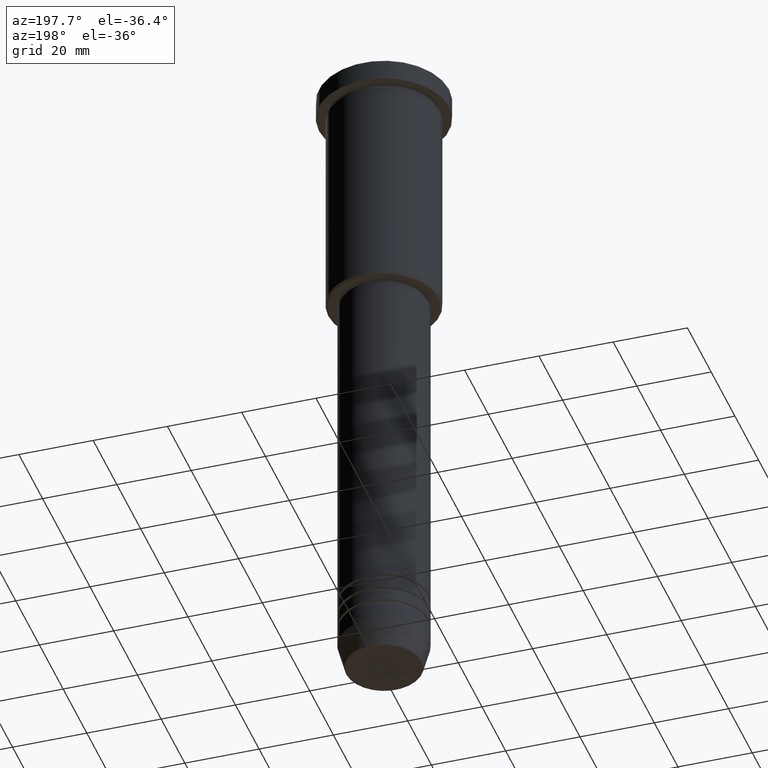
[diagram: clean part render]
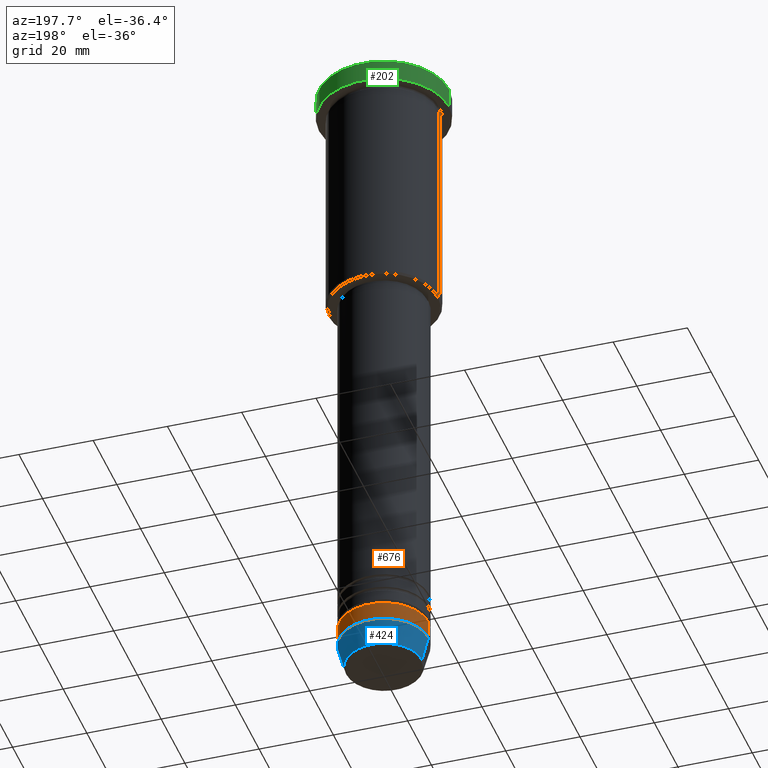
[diagram: same view with three faces highlighted in distinct colors, each labeled with its STEP entity id]
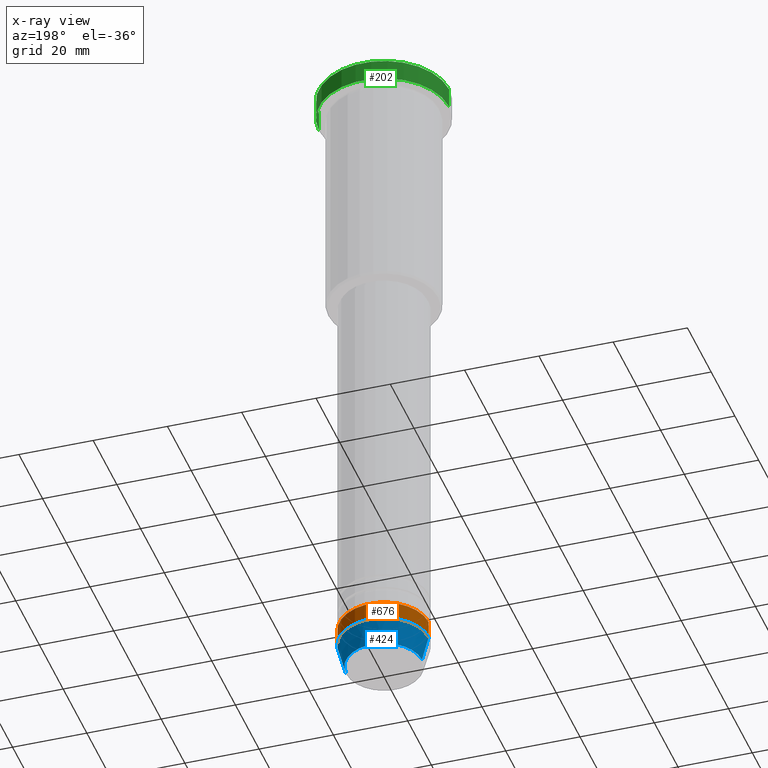
[diagram: x-ray of the same camera — body ghosted, the three highlighted faces saturated]
A machine part, auxiliary view with three faces highlighted in distinct colors.
The next image is the same camera in x-ray (body ghosted, the three faces saturated) — at least one of them is partly hidden behind the body in this view.
Their STEP definitions:

[orange] entity #676 — the highlighted cylindrical surface (partial cylindrical patch) has radius 12 mm, axis along (-0, -0, 1).
#3 = DIRECTION ( 'NONE',  ( -0.000000000000000000, -0.000000000000000000, 1.000000000000000000 ) ) ;
#33 = EDGE_CURVE ( 'NONE', #377, #820, #704, .T. ) ;
#68 = CARTESIAN_POINT ( 'NONE',  ( -12.00000000000000000, 1.469576158976823947E-15, -168.9999999999999716 ) ) ;
#86 = CIRCLE ( 'NONE', #187, 12.00000000000000000 ) ;
#125 = EDGE_CURVE ( 'NONE', #726, #1003, #163, .T. ) ;
#163 = LINE ( 'NONE', #826, #739 ) ;
#187 = AXIS2_PLACEMENT_3D ( 'NONE', #960, #506, #339 ) ;
#245 = CARTESIAN_POINT ( 'NONE',  ( -12.00000000000000000, 1.469576158976823947E-15, -174.0000000000000000 ) ) ;
#271 = VECTOR ( 'NONE', #344, 1000.000000000000000 ) ;
#299 = EDGE_LOOP ( 'NONE', ( #742, #765, #1093, #666 ) ) ;
#323 = CARTESIAN_POINT ( 'NONE',  ( 12.00000000000000000, 0.000000000000000000, -174.0000000000000000 ) ) ;
#339 = DIRECTION ( 'NONE',  ( 1.000000000000000000, 0.000000000000000000, 0.000000000000000000 ) ) ;
#344 = DIRECTION ( 'NONE',  ( -0.000000000000000000, -0.000000000000000000, 1.000000000000000000 ) ) ;
#377 = VERTEX_POINT ( 'NONE', #245 ) ;
#435 = DIRECTION ( 'NONE',  ( -0.000000000000000000, -0.000000000000000000, 1.000000000000000000 ) ) ;
#440 = CYLINDRICAL_SURFACE ( 'NONE', #496, 12.00000000000000000 ) ;
#496 = AXIS2_PLACEMENT_3D ( 'NONE', #965, #435, #590 ) ;
#506 = DIRECTION ( 'NONE',  ( -0.000000000000000000, -0.000000000000000000, 1.000000000000000000 ) ) ;
#511 = CARTESIAN_POINT ( 'NONE',  ( 12.00000000000000000, 0.000000000000000000, -168.9999999999999716 ) ) ;
#590 = DIRECTION ( 'NONE',  ( 1.000000000000000000, 0.000000000000000000, 0.000000000000000000 ) ) ;
#666 = ORIENTED_EDGE ( 'NONE', *, *, #125, .F. ) ;
#676 = ADVANCED_FACE ( 'NONE', ( #1138 ), #440, .T. ) ;
#704 = LINE ( 'NONE', #984, #271 ) ;
#726 = VERTEX_POINT ( 'NONE', #323 ) ;
#739 = VECTOR ( 'NONE', #3, 1000.000000000000000 ) ;
#742 = ORIENTED_EDGE ( 'NONE', *, *, #1089, .T. ) ;
#765 = ORIENTED_EDGE ( 'NONE', *, *, #33, .T. ) ;
#820 = VERTEX_POINT ( 'NONE', #68 ) ;
#823 = EDGE_CURVE ( 'NONE', #1003, #820, #1047, .T. ) ;
#826 = CARTESIAN_POINT ( 'NONE',  ( 12.00000000000000000, 0.000000000000000000, 0.000000000000000000 ) ) ;
#901 = CARTESIAN_POINT ( 'NONE',  ( 0.000000000000000000, 0.000000000000000000, -168.9999999999999716 ) ) ;
#960 = CARTESIAN_POINT ( 'NONE',  ( 0.000000000000000000, 0.000000000000000000, -174.0000000000000000 ) ) ;
#965 = CARTESIAN_POINT ( 'NONE',  ( 0.000000000000000000, 0.000000000000000000, 0.000000000000000000 ) ) ;
#984 = CARTESIAN_POINT ( 'NONE',  ( -12.00000000000000000, 1.469576158976823947E-15, 0.000000000000000000 ) ) ;
#986 = AXIS2_PLACEMENT_3D ( 'NONE', #901, #1092, #1166 ) ;
#1003 = VERTEX_POINT ( 'NONE', #511 ) ;
#1047 = CIRCLE ( 'NONE', #986, 12.00000000000000000 ) ;
#1089 = EDGE_CURVE ( 'NONE', #726, #377, #86, .T. ) ;
#1092 = DIRECTION ( 'NONE',  ( -0.000000000000000000, -0.000000000000000000, 1.000000000000000000 ) ) ;
#1093 = ORIENTED_EDGE ( 'NONE', *, *, #823, .F. ) ;
#1138 = FACE_OUTER_BOUND ( 'NONE', #299, .T. ) ;
#1166 = DIRECTION ( 'NONE',  ( 1.000000000000000000, 0.000000000000000000, 0.000000000000000000 ) ) ;

[blue] entity #424 — the highlighted conical surface has half-angle 15 deg.
#86 = CIRCLE ( 'NONE', #187, 12.00000000000000000 ) ;
#114 = CONICAL_SURFACE ( 'NONE', #587, 12.00000000000000000, 0.2617993877991500740 ) ;
#142 = VECTOR ( 'NONE', #569, 1000.000000000000000 ) ;
#187 = AXIS2_PLACEMENT_3D ( 'NONE', #960, #506, #339 ) ;
#189 = VERTEX_POINT ( 'NONE', #990 ) ;
#220 = DIRECTION ( 'NONE',  ( 1.000000000000000000, 0.000000000000000000, 0.000000000000000000 ) ) ;
#245 = CARTESIAN_POINT ( 'NONE',  ( -12.00000000000000000, 1.469576158976823947E-15, -174.0000000000000000 ) ) ;
#304 = CARTESIAN_POINT ( 'NONE',  ( -12.00000000000000000, 1.469576158976823947E-15, -174.0000000000000000 ) ) ;
#306 = ORIENTED_EDGE ( 'NONE', *, *, #638, .T. ) ;
#323 = CARTESIAN_POINT ( 'NONE',  ( 12.00000000000000000, 0.000000000000000000, -174.0000000000000000 ) ) ;
#332 = DIRECTION ( 'NONE',  ( -0.000000000000000000, -0.000000000000000000, 1.000000000000000000 ) ) ;
#339 = DIRECTION ( 'NONE',  ( 1.000000000000000000, 0.000000000000000000, 0.000000000000000000 ) ) ;
#377 = VERTEX_POINT ( 'NONE', #245 ) ;
#388 = CIRCLE ( 'NONE', #910, 10.22365507213719127 ) ;
#424 = ADVANCED_FACE ( 'NONE', ( #810 ), #114, .T. ) ;
#428 = CARTESIAN_POINT ( 'NONE',  ( -10.22365507213719127, 1.360806402472382744E-15, -180.6294095225512422 ) ) ;
#457 = DIRECTION ( 'NONE',  ( 1.000000000000000000, 0.000000000000000000, 0.000000000000000000 ) ) ;
#483 = VECTOR ( 'NONE', #642, 1000.000000000000000 ) ;
#495 = EDGE_LOOP ( 'NONE', ( #657, #306, #632, #614 ) ) ;
#506 = DIRECTION ( 'NONE',  ( -0.000000000000000000, -0.000000000000000000, 1.000000000000000000 ) ) ;
#542 = EDGE_CURVE ( 'NONE', #189, #726, #935, .T. ) ;
#569 = DIRECTION ( 'NONE',  ( -0.2588190451025213501, 3.169619151431772337E-17, 0.9659258262890680902 ) ) ;
#587 = AXIS2_PLACEMENT_3D ( 'NONE', #995, #1094, #457 ) ;
#614 = ORIENTED_EDGE ( 'NONE', *, *, #542, .F. ) ;
#632 = ORIENTED_EDGE ( 'NONE', *, *, #1089, .F. ) ;
#638 = EDGE_CURVE ( 'NONE', #768, #377, #747, .T. ) ;
#642 = DIRECTION ( 'NONE',  ( 0.2588190451025213501, 0.000000000000000000, 0.9659258262890680902 ) ) ;
#657 = ORIENTED_EDGE ( 'NONE', *, *, #997, .T. ) ;
#726 = VERTEX_POINT ( 'NONE', #323 ) ;
#747 = LINE ( 'NONE', #304, #142 ) ;
#768 = VERTEX_POINT ( 'NONE', #428 ) ;
#810 = FACE_OUTER_BOUND ( 'NONE', #495, .T. ) ;
#910 = AXIS2_PLACEMENT_3D ( 'NONE', #1036, #332, #220 ) ;
#922 = CARTESIAN_POINT ( 'NONE',  ( 12.00000000000000000, 0.000000000000000000, -174.0000000000000000 ) ) ;
#935 = LINE ( 'NONE', #922, #483 ) ;
#960 = CARTESIAN_POINT ( 'NONE',  ( 0.000000000000000000, 0.000000000000000000, -174.0000000000000000 ) ) ;
#990 = CARTESIAN_POINT ( 'NONE',  ( 10.22365507213719127, 0.000000000000000000, -180.6294095225512422 ) ) ;
#995 = CARTESIAN_POINT ( 'NONE',  ( 0.000000000000000000, 0.000000000000000000, -174.0000000000000000 ) ) ;
#997 = EDGE_CURVE ( 'NONE', #189, #768, #388, .T. ) ;
#1036 = CARTESIAN_POINT ( 'NONE',  ( 0.000000000000000000, 0.000000000000000000, -180.6294095225512422 ) ) ;
#1089 = EDGE_CURVE ( 'NONE', #726, #377, #86, .T. ) ;
#1094 = DIRECTION ( 'NONE',  ( -0.000000000000000000, -0.000000000000000000, 1.000000000000000000 ) ) ;

[green] entity #202 — the highlighted cylindrical surface (partial cylindrical patch) has radius 17.5 mm, axis along (-0, -0, 1).
#19 = DIRECTION ( 'NONE',  ( -0.000000000000000000, -0.000000000000000000, 1.000000000000000000 ) ) ;
#84 = AXIS2_PLACEMENT_3D ( 'NONE', #777, #154, #1143 ) ;
#91 = DIRECTION ( 'NONE',  ( 1.000000000000000000, 0.000000000000000000, 0.000000000000000000 ) ) ;
#154 = DIRECTION ( 'NONE',  ( 0.000000000000000000, 0.000000000000000000, -1.000000000000000000 ) ) ;
#160 = EDGE_CURVE ( 'NONE', #481, #405, #449, .T. ) ;
#181 = FACE_OUTER_BOUND ( 'NONE', #427, .T. ) ;
#202 = ADVANCED_FACE ( 'NONE', ( #181 ), #904, .T. ) ;
#244 = CIRCLE ( 'NONE', #84, 17.50000000000000000 ) ;
#251 = AXIS2_PLACEMENT_3D ( 'NONE', #643, #630, #806 ) ;
#267 = CARTESIAN_POINT ( 'NONE',  ( 17.50000000000000000, 0.000000000000000000, -5.999999999999995559 ) ) ;
#276 = DIRECTION ( 'NONE',  ( -0.000000000000000000, -0.000000000000000000, 1.000000000000000000 ) ) ;
#311 = ORIENTED_EDGE ( 'NONE', *, *, #371, .F. ) ;
#371 = EDGE_CURVE ( 'NONE', #481, #804, #688, .T. ) ;
#383 = CARTESIAN_POINT ( 'NONE',  ( 0.000000000000000000, 0.000000000000000000, 0.000000000000000000 ) ) ;
#405 = VERTEX_POINT ( 'NONE', #633 ) ;
#427 = EDGE_LOOP ( 'NONE', ( #1052, #902, #790, #311 ) ) ;
#449 = CIRCLE ( 'NONE', #251, 17.50000000000000000 ) ;
#450 = VERTEX_POINT ( 'NONE', #1083 ) ;
#481 = VERTEX_POINT ( 'NONE', #267 ) ;
#586 = DIRECTION ( 'NONE',  ( -0.000000000000000000, -0.000000000000000000, 1.000000000000000000 ) ) ;
#630 = DIRECTION ( 'NONE',  ( -0.000000000000000000, -0.000000000000000000, 1.000000000000000000 ) ) ;
#633 = CARTESIAN_POINT ( 'NONE',  ( -17.50000000000000000, 2.143131898507868248E-15, -5.999999999999995559 ) ) ;
#643 = CARTESIAN_POINT ( 'NONE',  ( 0.000000000000000000, 0.000000000000000000, -5.999999999999995559 ) ) ;
#688 = LINE ( 'NONE', #1065, #1105 ) ;
#701 = CARTESIAN_POINT ( 'NONE',  ( -17.50000000000000000, 2.143131898507868248E-15, 0.000000000000000000 ) ) ;
#745 = EDGE_CURVE ( 'NONE', #450, #804, #244, .T. ) ;
#777 = CARTESIAN_POINT ( 'NONE',  ( 0.000000000000000000, 0.000000000000000000, -0.5000000000000003331 ) ) ;
#790 = ORIENTED_EDGE ( 'NONE', *, *, #745, .T. ) ;
#798 = LINE ( 'NONE', #701, #857 ) ;
#804 = VERTEX_POINT ( 'NONE', #821 ) ;
#806 = DIRECTION ( 'NONE',  ( 1.000000000000000000, 0.000000000000000000, 0.000000000000000000 ) ) ;
#821 = CARTESIAN_POINT ( 'NONE',  ( 17.50000000000000000, 0.000000000000000000, -0.5000000000000003331 ) ) ;
#840 = EDGE_CURVE ( 'NONE', #405, #450, #798, .T. ) ;
#857 = VECTOR ( 'NONE', #19, 1000.000000000000000 ) ;
#902 = ORIENTED_EDGE ( 'NONE', *, *, #840, .T. ) ;
#904 = CYLINDRICAL_SURFACE ( 'NONE', #991, 17.50000000000000000 ) ;
#991 = AXIS2_PLACEMENT_3D ( 'NONE', #383, #276, #91 ) ;
#1052 = ORIENTED_EDGE ( 'NONE', *, *, #160, .T. ) ;
#1065 = CARTESIAN_POINT ( 'NONE',  ( 17.50000000000000000, 0.000000000000000000, 0.000000000000000000 ) ) ;
#1083 = CARTESIAN_POINT ( 'NONE',  ( -17.50000000000000000, 2.143131898507868248E-15, -0.5000000000000003331 ) ) ;
#1105 = VECTOR ( 'NONE', #586, 1000.000000000000000 ) ;
#1143 = DIRECTION ( 'NONE',  ( 1.000000000000000000, 0.000000000000000000, 0.000000000000000000 ) ) ;